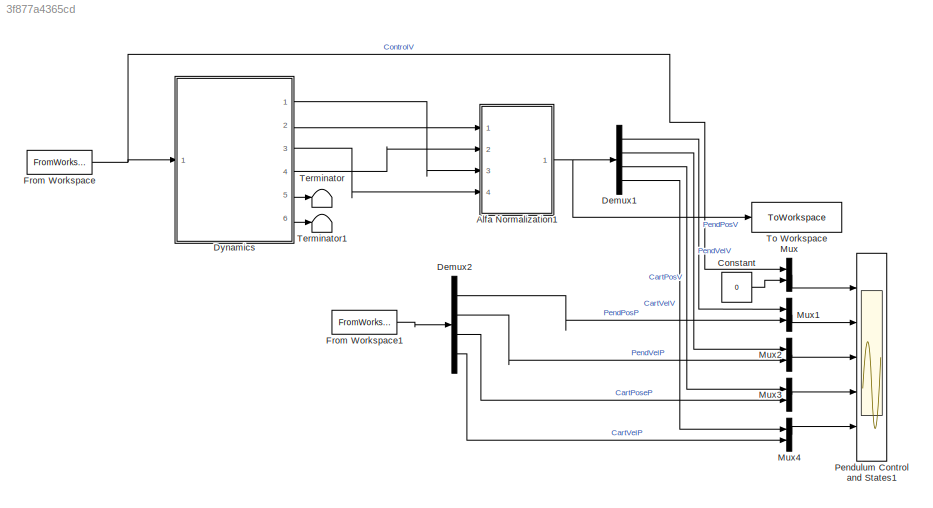
MODEL slx_3f877a4365cd
KIND model
CONFIG AbsTol = 1e-6
CONFIG EnableMultiTasking = off
CONFIG FixedStep = 0.01
CONFIG MaxStep = auto
CONFIG MinStep = auto
CONFIG RelTol = 1e-3
CONFIG SampleTimeConstraint = Unconstrained
CONFIG SolverName = ode5
CONFIG StartTime = 0.0
CONFIG StopTime = 9999
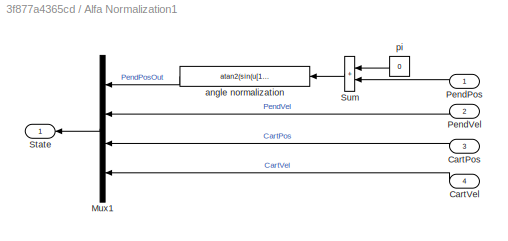
BLOCK [SubSystem] Alfa Normalization1
  Ports = [4, 1]
  RequestExecContextInheritance = off
BLOCK [Inport] Alfa Normalization1/CartPos
  Port = 3
BLOCK [Inport] Alfa Normalization1/CartVel
  Port = 4
BLOCK [Mux] Alfa Normalization1/Mux1
  NameLocation = top
  Ports = [4, 1]
BLOCK [Inport] Alfa Normalization1/PendPos
BLOCK [Inport] Alfa Normalization1/PendVel
  Port = 2
BLOCK [Outport] Alfa Normalization1/State
  InitialOutput = 0
BLOCK [Sum] Alfa Normalization1/Sum
  IconShape = rectangular
  InputSameDT = on
  NameLocation = top
  OutDataTypeStr = Inherit: Same as first input
  Ports = [2, 1]
  SaturateOnIntegerOverflow = on
BLOCK [Fcn] Alfa Normalization1/angle normalization
  Expr = atan2(sin(u[1]),cos(u[1]))
  NameLocation = top
BLOCK [Constant] Alfa Normalization1/pi
  NameLocation = top
  Value = 0
BLOCK [Constant] Constant
  Value = 0
BLOCK [Demux] Demux1
  DisplayOption = none
  Ports = [1, 4]
BLOCK [Demux] Demux2
  DisplayOption = none
  Ports = [1, 4]
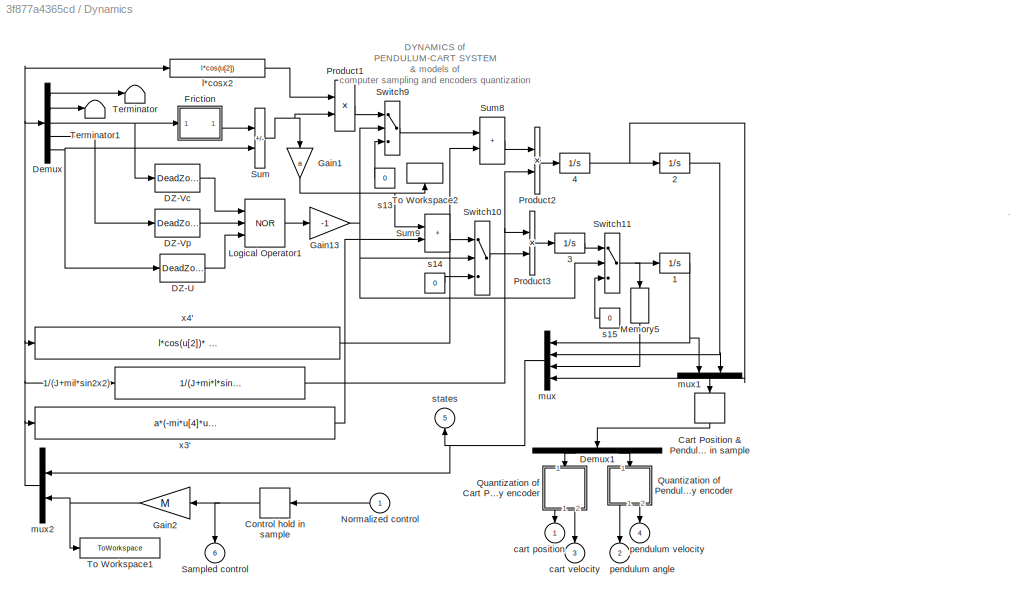
BLOCK [SubSystem] Dynamics
  Ports = [1, 6]
  RequestExecContextInheritance = off
  ShowPortLabels = none
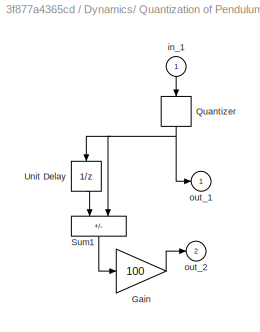
BLOCK [SubSystem] Dynamics/ Quantization of Pendulum Angle introduced by encoder
  NameLocation = right
  Ports = [1, 2]
  RequestExecContextInheritance = off
  ShowPortLabels = none
BLOCK [Gain] Dynamics/ Quantization of Pendulum Angle introduced by encoder/Gain
  Gain = 100
  OutDataTypeStr = Inherit: Same as input
  ParamDataTypeStr = Inherit: Same as input
  SaturateOnIntegerOverflow = on
BLOCK [Quantizer] Dynamics/ Quantization of Pendulum Angle introduced by encoder/Quantizer
  NameLocation = left
  QuantizationInterval = 0.001534
BLOCK [Sum] Dynamics/ Quantization of Pendulum Angle introduced by encoder/Sum1
  IconShape = rectangular
  InputSameDT = on
  Inputs = -+
  NameLocation = left
  OutDataTypeStr = Inherit: Same as first input
  Ports = [2, 1]
  SaturateOnIntegerOverflow = on
BLOCK [UnitDelay] Dynamics/ Quantization of Pendulum Angle introduced by encoder/Unit Delay
  HasFrameUpgradeWarning = on
  InitialCondition = x_ini(2)
  NameLocation = left
  SampleTime = 0.01
BLOCK [Inport] Dynamics/ Quantization of Pendulum Angle introduced by encoder/in_1
  NameLocation = right
BLOCK [Outport] Dynamics/ Quantization of Pendulum Angle introduced by encoder/out_1
  InitialOutput = 0
  NameLocation = top
BLOCK [Outport] Dynamics/ Quantization of Pendulum Angle introduced by encoder/out_2
  InitialOutput = 0
  Port = 2
BLOCK [Integrator] Dynamics/1
  InitialCondition = x_ini(1)
  Ports = [1, 1]
BLOCK [Fcn] Dynamics/1//(J+mil*sin2x2)
  Expr = 1/(J+mi*l*sin(u[2])*sin(u[2]))
BLOCK [Integrator] Dynamics/2
  InitialCondition = x_ini(2)
  Ports = [1, 1]
BLOCK [Integrator] Dynamics/3
  InitialCondition = x_ini(3)
  Ports = [1, 1]
BLOCK [Integrator] Dynamics/4
  InitialCondition = x_ini(4)
  Ports = [1, 1]
BLOCK [ZeroOrderHold] Dynamics/Cart Position & Pendulum Angle hold in sample
  NameLocation = left
  SampleTime = 0.01
BLOCK [ZeroOrderHold] Dynamics/Control hold in sample
  SampleTime = 0.01
BLOCK [DeadZone] Dynamics/DZ-U
  LowerValue = -DZu
  UpperValue = DZu
BLOCK [DeadZone] Dynamics/DZ-Vc
  LowerValue = -DZcv
  UpperValue = DZcv
BLOCK [DeadZone] Dynamics/DZ-Vp
  LowerValue = -DZcp
  UpperValue = DZcp
BLOCK [Demux] Dynamics/Demux
  DisplayOption = none
  Outputs = 5
  Ports = [1, 5]
BLOCK [Demux] Dynamics/Demux1
  DisplayOption = none
  NameLocation = left
  Outputs = 2
  Ports = [1, 2]
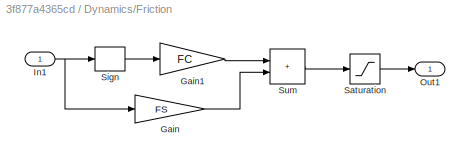
BLOCK [SubSystem] Dynamics/Friction
  NameLocation = top
  Ports = [1, 1]
  RequestExecContextInheritance = off
BLOCK [Gain] Dynamics/Friction/Gain
  Gain = FS
  OutDataTypeStr = Inherit: Same as input
  ParamDataTypeStr = Inherit: Same as input
  SaturateOnIntegerOverflow = on
BLOCK [Gain] Dynamics/Friction/Gain1
  Gain = FC
  OutDataTypeStr = Inherit: Same as input
  ParamDataTypeStr = Inherit: Same as input
  SaturateOnIntegerOverflow = on
BLOCK [Inport] Dynamics/Friction/In1
BLOCK [Outport] Dynamics/Friction/Out1
  InitialOutput = 0
BLOCK [Saturate] Dynamics/Friction/Saturation
  LowerLimit = -1
  UpperLimit = 1
BLOCK [Signum] Dynamics/Friction/Sign
BLOCK [Sum] Dynamics/Friction/Sum
  IconShape = rectangular
  InputSameDT = on
  OutDataTypeStr = Inherit: Same as first input
  Ports = [2, 1]
  SaturateOnIntegerOverflow = on
BLOCK [Gain] Dynamics/Gain1
  Gain = a
  NameLocation = right
  OutDataTypeStr = Inherit: Same as input
  ParamDataTypeStr = Inherit: Same as input
  SaturateOnIntegerOverflow = on
BLOCK [Gain] Dynamics/Gain13
  Gain = -1
  OutDataTypeStr = Inherit: Same as input
  ParamDataTypeStr = Inherit: Same as input
  SaturateOnIntegerOverflow = on
BLOCK [Gain] Dynamics/Gain2
  Gain = M
  OutDataTypeStr = Inherit: Same as input
  ParamDataTypeStr = Inherit: Same as input
  SaturateOnIntegerOverflow = on
BLOCK [Logic] Dynamics/Logical Operator1
  Inputs = 3
  Operator = NOR
  Ports = [3, 1]
BLOCK [Memory] Dynamics/Memory5
  NameLocation = right
BLOCK [Inport] Dynamics/Normalized control
BLOCK [Product] Dynamics/Product1
  InputSameDT = on
  OutDataTypeStr = Inherit: Same as first input
  Ports = [2, 1]
  RndMeth = Zero
  SaturateOnIntegerOverflow = on
BLOCK [Product] Dynamics/Product2
  InputSameDT = on
  OutDataTypeStr = Inherit: Same as first input
  Ports = [2, 1]
  RndMeth = Zero
  SaturateOnIntegerOverflow = on
BLOCK [Product] Dynamics/Product3
  InputSameDT = on
  OutDataTypeStr = Inherit: Same as first input
  Ports = [2, 1]
  RndMeth = Zero
  SaturateOnIntegerOverflow = on
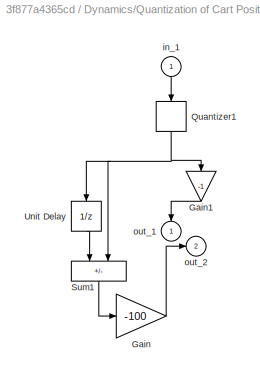
BLOCK [SubSystem] Dynamics/Quantization of Cart Position introduced by encoder 
  NameLocation = left
  Ports = [1, 2]
  RequestExecContextInheritance = off
  ShowPortLabels = none
BLOCK [Gain] Dynamics/Quantization of Cart Position introduced by encoder /Gain
  Gain = -100
  OutDataTypeStr = Inherit: Same as input
  ParamDataTypeStr = Inherit: Same as input
  SaturateOnIntegerOverflow = on
BLOCK [Gain] Dynamics/Quantization of Cart Position introduced by encoder /Gain1
  Gain = -1
  NameLocation = left
BLOCK [Quantizer] Dynamics/Quantization of Cart Position introduced by encoder /Quantizer1
  NameLocation = left
  QuantizationInterval = 5.7053e-005
BLOCK [Sum] Dynamics/Quantization of Cart Position introduced by encoder /Sum1
  IconShape = rectangular
  InputSameDT = on
  Inputs = -+
  NameLocation = left
  OutDataTypeStr = Inherit: Same as first input
  Ports = [2, 1]
  SaturateOnIntegerOverflow = on
BLOCK [UnitDelay] Dynamics/Quantization of Cart Position introduced by encoder /Unit Delay
  HasFrameUpgradeWarning = on
  InitialCondition = x_ini(1)
  NameLocation = left
  SampleTime = 0.01
BLOCK [Inport] Dynamics/Quantization of Cart Position introduced by encoder /in_1
  NameLocation = right
BLOCK [Outport] Dynamics/Quantization of Cart Position introduced by encoder /out_1
  InitialOutput = 0
  NameLocation = right
BLOCK [Outport] Dynamics/Quantization of Cart Position introduced by encoder /out_2
  InitialOutput = 0
  Port = 2
BLOCK [Outport] Dynamics/Sampled control
  InitialOutput = 0
  NameLocation = right
  Port = 6
BLOCK [Sum] Dynamics/Sum
  IconShape = rectangular
  InputSameDT = on
  Inputs = -+
  OutDataTypeStr = Inherit: Same as first input
  Ports = [2, 1]
  SaturateOnIntegerOverflow = on
BLOCK [Sum] Dynamics/Sum8
  IconShape = rectangular
  InputSameDT = on
  OutDataTypeStr = Inherit: Same as first input
  Ports = [2, 1]
  SaturateOnIntegerOverflow = on
BLOCK [Sum] Dynamics/Sum9
  IconShape = rectangular
  InputSameDT = on
  OutDataTypeStr = Inherit: Same as first input
  Ports = [2, 1]
  SaturateOnIntegerOverflow = on
BLOCK [Switch] Dynamics/Switch10
BLOCK [Switch] Dynamics/Switch11
BLOCK [Switch] Dynamics/Switch9
BLOCK [Terminator] Dynamics/Terminator
BLOCK [Terminator] Dynamics/Terminator1
BLOCK [ToWorkspace] Dynamics/To Workspace1
  MaxDataPoints = 100000
  NameLocation = top
  Ports = [1]
  VariableName = Control_Newton
BLOCK [ToWorkspace] Dynamics/To Workspace2
  MaxDataPoints = 100000
  NameLocation = right
  Ports = [1]
  VariableName = fric
BLOCK [Outport] Dynamics/cart position
  InitialOutput = 0
  NameLocation = left
BLOCK [Outport] Dynamics/cart velocity
  InitialOutput = 0
  NameLocation = left
  Port = 3
BLOCK [Fcn] Dynamics/l*cosx2
  Expr = l*cos(u[2])
BLOCK [Mux] Dynamics/mux
  Ports = [4, 1]
BLOCK [Mux] Dynamics/mux1
  Inputs = 2
  NameLocation = right
  Ports = [2, 1]
BLOCK [Mux] Dynamics/mux2
  Inputs = [4 1]
  Ports = [2, 1]
BLOCK [Outport] Dynamics/pendulum angle
  InitialOutput = 0
  NameLocation = right
  Port = 2
BLOCK [Outport] Dynamics/pendulum velocity
  InitialOutput = 0
  NameLocation = right
  Port = 4
BLOCK [Constant] Dynamics/s13
  NameLocation = top
  Value = 0
BLOCK [Constant] Dynamics/s14
  NameLocation = top
  Value = 0
BLOCK [Constant] Dynamics/s15
  NameLocation = top
  Value = 0
BLOCK [Outport] Dynamics/states
  InitialOutput = 0
  NameLocation = left
  Port = 5
BLOCK [Fcn] Dynamics/x3'
  Expr = a*(-mi*u[4]*u[4]*sin(u[2]) )+l*cos(u[2])*(mi*g*sin(u[2])-fp*u[4])
BLOCK [Fcn] Dynamics/x4'
  Expr = l*cos(u[2])* (-mi*u[4]*u[4]*sin(u[2])) + mi*g*sin(u[2])-fp*u[4]
BLOCK [FromWorkspace] From Workspace
  VariableName = Actions
BLOCK [FromWorkspace] From Workspace1
  VariableName = StatesReal
BLOCK [Mux] Mux
  DisplayOption = bar
  Inputs = 2
  Ports = [2, 1]
BLOCK [Mux] Mux1
  DisplayOption = bar
  Inputs = 2
  Ports = [2, 1]
BLOCK [Mux] Mux2
  DisplayOption = bar
  Inputs = 2
  Ports = [2, 1]
BLOCK [Mux] Mux3
  DisplayOption = bar
  Inputs = 2
  Ports = [2, 1]
BLOCK [Mux] Mux4
  DisplayOption = bar
  Inputs = 2
  Ports = [2, 1]
BLOCK [Scope] Pendulum Control and States1
  Floating = off
  NumInputPorts = 5
  Ports = [5]
  ScopeSpecificationString = Simulink.scopes.TimeScopeBlockCfg('CurrentConfiguration', extmgr.ConfigurationSet(extmgr.Configuration('Core','General UI',true),extmgr.Configuration('Core','Source UI',true),extmgr.Configuration('Sources','WiredSimulink',true,'DataLogging',true,'DataLoggingVariableName','States1','DataLoggingSaveFormat','StructureWithTime','DataLoggingMaxPoints','50000','DataLoggingLimitDataPoints',true,'DataLogg...<+6595ch>
BLOCK [Terminator] Terminator
BLOCK [Terminator] Terminator1
BLOCK [ToWorkspace] To Workspace
  FixptAsFi = on
  MaxDataPoints = inf
  Ports = [1]
  SampleTime = -1
  SaveFormat = Timeseries
  VariableName = StatesOptimization
ANNOTATION Dynamics: .
ANNOTATION Dynamics: DYNAMICS of PENDULUM-CART SYSTEM & models of computer sampling and encoders quantization
LINE Alfa Normalization1/CartPos:1 -> Alfa Normalization1/Mux1:3
LINE Alfa Normalization1/CartVel:1 -> Alfa Normalization1/Mux1:4
LINE Alfa Normalization1/Mux1:1 -> Alfa Normalization1/State:1
LINE Alfa Normalization1/PendPos:1 -> Alfa Normalization1/Sum:2
LINE Alfa Normalization1/PendVel:1 -> Alfa Normalization1/Mux1:2
LINE Alfa Normalization1/Sum:1 -> Alfa Normalization1/angle normalization:1
LINE Alfa Normalization1/angle normalization:1 -> Alfa Normalization1/Mux1:1
LINE Alfa Normalization1/pi:1 -> Alfa Normalization1/Sum:1
NET Alfa Normalization1:1 -> Demux1:1, To Workspace:1
LINE Constant:1 -> Mux:2
LINE Demux1:1 -> Mux1:1
LINE Demux1:2 -> Mux2:1
LINE Demux1:3 -> Mux3:1
LINE Demux1:4 -> Mux4:1
LINE Demux2:1 -> Mux1:2
LINE Demux2:2 -> Mux2:2
LINE Demux2:3 -> Mux3:2
LINE Demux2:4 -> Mux4:2
LINE Dynamics/ Quantization of Pendulum Angle introduced by encoder/Gain:1 -> Dynamics/ Quantization of Pendulum Angle introduced by encoder/out_2:1
NET Dynamics/ Quantization of Pendulum Angle introduced by encoder/Quantizer:1 -> Dynamics/ Quantization of Pendulum Angle introduced by encoder/Sum1:2, Dynamics/ Quantization of Pendulum Angle introduced by encoder/Unit Delay:1, Dynamics/ Quantization of Pendulum Angle introduced by encoder/out_1:1
LINE Dynamics/ Quantization of Pendulum Angle introduced by encoder/Sum1:1 -> Dynamics/ Quantization of Pendulum Angle introduced by encoder/Gain:1
LINE Dynamics/ Quantization of Pendulum Angle introduced by encoder/Unit Delay:1 -> Dynamics/ Quantization of Pendulum Angle introduced by encoder/Sum1:1
LINE Dynamics/ Quantization of Pendulum Angle introduced by encoder/in_1:1 -> Dynamics/ Quantization of Pendulum Angle introduced by encoder/Quantizer:1
LINE Dynamics/ Quantization of Pendulum Angle introduced by encoder:1 -> Dynamics/pendulum angle:1
LINE Dynamics/ Quantization of Pendulum Angle introduced by encoder:2 -> Dynamics/pendulum velocity:1
NET Dynamics/1//(J+mil*sin2x2):1 -> Dynamics/Product2:2, Dynamics/Product3:1
NET Dynamics/1:1 -> Dynamics/mux1:1, Dynamics/mux:1
NET Dynamics/2:1 -> Dynamics/mux1:2, Dynamics/mux:2
LINE Dynamics/3:1 -> Dynamics/Switch11:1
NET Dynamics/4:1 -> Dynamics/2:1, Dynamics/mux:4
LINE Dynamics/Cart Position & Pendulum Angle hold in sample:1 -> Dynamics/Demux1:1
NET Dynamics/Control hold in sample:1 -> Dynamics/Gain2:1, Dynamics/Sampled control:1
LINE Dynamics/DZ-U:1 -> Dynamics/Logical Operator1:3
LINE Dynamics/DZ-Vc:1 -> Dynamics/Logical Operator1:1
LINE Dynamics/DZ-Vp:1 -> Dynamics/Logical Operator1:2
LINE Dynamics/Demux1:1 -> Dynamics/Quantization of Cart Position introduced by encoder :1
LINE Dynamics/Demux1:2 -> Dynamics/ Quantization of Pendulum Angle introduced by encoder:1
LINE Dynamics/Demux:1 -> Dynamics/Terminator:1
LINE Dynamics/Demux:2 -> Dynamics/Terminator1:1
NET Dynamics/Demux:3 -> Dynamics/DZ-Vc:1, Dynamics/Friction:1
LINE Dynamics/Demux:4 -> Dynamics/DZ-Vp:1
NET Dynamics/Demux:5 -> Dynamics/DZ-U:1, Dynamics/Sum:2
LINE Dynamics/Friction/Gain1:1 -> Dynamics/Friction/Sum:1
LINE Dynamics/Friction/Gain:1 -> Dynamics/Friction/Sum:2
NET Dynamics/Friction/In1:1 -> Dynamics/Friction/Gain:1, Dynamics/Friction/Sign:1
LINE Dynamics/Friction/Saturation:1 -> Dynamics/Friction/Out1:1
LINE Dynamics/Friction/Sign:1 -> Dynamics/Friction/Gain1:1
LINE Dynamics/Friction/Sum:1 -> Dynamics/Friction/Saturation:1
LINE Dynamics/Friction:1 -> Dynamics/Sum:1
NET Dynamics/Gain13:1 -> Dynamics/Switch10:2, Dynamics/Switch11:2, Dynamics/Switch9:2
NET Dynamics/Gain1:1 -> Dynamics/Sum9:1, Dynamics/To Workspace2:1
NET Dynamics/Gain2:1 -> Dynamics/To Workspace1:1, Dynamics/mux2:2
LINE Dynamics/Logical Operator1:1 -> Dynamics/Gain13:1
LINE Dynamics/Memory5:1 -> Dynamics/mux:3
LINE Dynamics/Normalized control:1 -> Dynamics/Control hold in sample:1
LINE Dynamics/Product1:1 -> Dynamics/Switch9:1
LINE Dynamics/Product2:1 -> Dynamics/4:1
LINE Dynamics/Product3:1 -> Dynamics/3:1
LINE Dynamics/Quantization of Cart Position introduced by encoder /Gain1:1 -> Dynamics/Quantization of Cart Position introduced by encoder /out_1:1
LINE Dynamics/Quantization of Cart Position introduced by encoder /Gain:1 -> Dynamics/Quantization of Cart Position introduced by encoder /out_2:1
NET Dynamics/Quantization of Cart Position introduced by encoder /Quantizer1:1 -> Dynamics/Quantization of Cart Position introduced by encoder /Gain1:1, Dynamics/Quantization of Cart Position introduced by encoder /Sum1:2, Dynamics/Quantization of Cart Position introduced by encoder /Unit Delay:1
LINE Dynamics/Quantization of Cart Position introduced by encoder /Sum1:1 -> Dynamics/Quantization of Cart Position introduced by encoder /Gain:1
LINE Dynamics/Quantization of Cart Position introduced by encoder /Unit Delay:1 -> Dynamics/Quantization of Cart Position introduced by encoder /Sum1:1
LINE Dynamics/Quantization of Cart Position introduced by encoder /in_1:1 -> Dynamics/Quantization of Cart Position introduced by encoder /Quantizer1:1
LINE Dynamics/Quantization of Cart Position introduced by encoder :1 -> Dynamics/cart position:1
LINE Dynamics/Quantization of Cart Position introduced by encoder :2 -> Dynamics/cart velocity:1
LINE Dynamics/Sum8:1 -> Dynamics/Product2:1
LINE Dynamics/Sum9:1 -> Dynamics/Switch10:1
NET Dynamics/Sum:1 -> Dynamics/Gain1:1, Dynamics/Product1:2
LINE Dynamics/Switch10:1 -> Dynamics/Product3:2
NET Dynamics/Switch11:1 -> Dynamics/1:1, Dynamics/Memory5:1
LINE Dynamics/Switch9:1 -> Dynamics/Sum8:1
LINE Dynamics/l*cosx2:1 -> Dynamics/Product1:1
LINE Dynamics/mux1:1 -> Dynamics/Cart Position & Pendulum Angle hold in sample:1
NET Dynamics/mux2:1 -> Dynamics/1//(J+mil*sin2x2):1, Dynamics/Demux:1, Dynamics/l*cosx2:1, Dynamics/x3':1, Dynamics/x4':1
NET Dynamics/mux:1 -> Dynamics/mux2:1, Dynamics/states:1
LINE Dynamics/s13:1 -> Dynamics/Switch9:3
LINE Dynamics/s14:1 -> Dynamics/Switch10:3
LINE Dynamics/s15:1 -> Dynamics/Switch11:3
LINE Dynamics/x3':1 -> Dynamics/Sum9:2
LINE Dynamics/x4':1 -> Dynamics/Sum8:2
LINE Dynamics:1 -> Alfa Normalization1:3
LINE Dynamics:2 -> Alfa Normalization1:1
LINE Dynamics:3 -> Alfa Normalization1:4
LINE Dynamics:4 -> Alfa Normalization1:2
LINE Dynamics:5 -> Terminator:1
LINE Dynamics:6 -> Terminator1:1
LINE From Workspace1:1 -> Demux2:1
NET From Workspace:1 -> Dynamics:1, Mux:1
LINE Mux1:1 -> Pendulum Control and States1:2
LINE Mux2:1 -> Pendulum Control and States1:3
LINE Mux3:1 -> Pendulum Control and States1:4
LINE Mux4:1 -> Pendulum Control and States1:5
LINE Mux:1 -> Pendulum Control and States1:1
note: NET lines group one-source signal fan-out (src -> all destinations, sorted); 1:1 wires keep LINE
